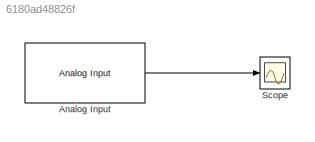
MODEL slx_6180ad48826f
KIND model
CONFIG AbsTol = auto
CONFIG FixedStep = auto
CONFIG MaxStep = auto
CONFIG MinStep = auto
CONFIG RelTol = 1e-3
CONFIG SampleTimeConstraint = Unconstrained
CONFIG Solver = ode45
CONFIG SolverMode = Auto
CONFIG SolverName = ode45
CONFIG StartTime = 0.0
CONFIG StopTime = 10.0
BLOCK [Reference] Analog Input  REF=arduinolib/Analog Input
  Ports = [0, 1]
  SourceBlock = arduinolib/Analog Input
  SourceType = Arduino Analog Input
  blockPlatform = arduino
  pinNumber = 0
  sampleTime = 1
BLOCK [Scope] Scope
  Floating = off
  NumInputPorts = 1
  Ports = [1]
LINE Analog Input:1 -> Scope:1
